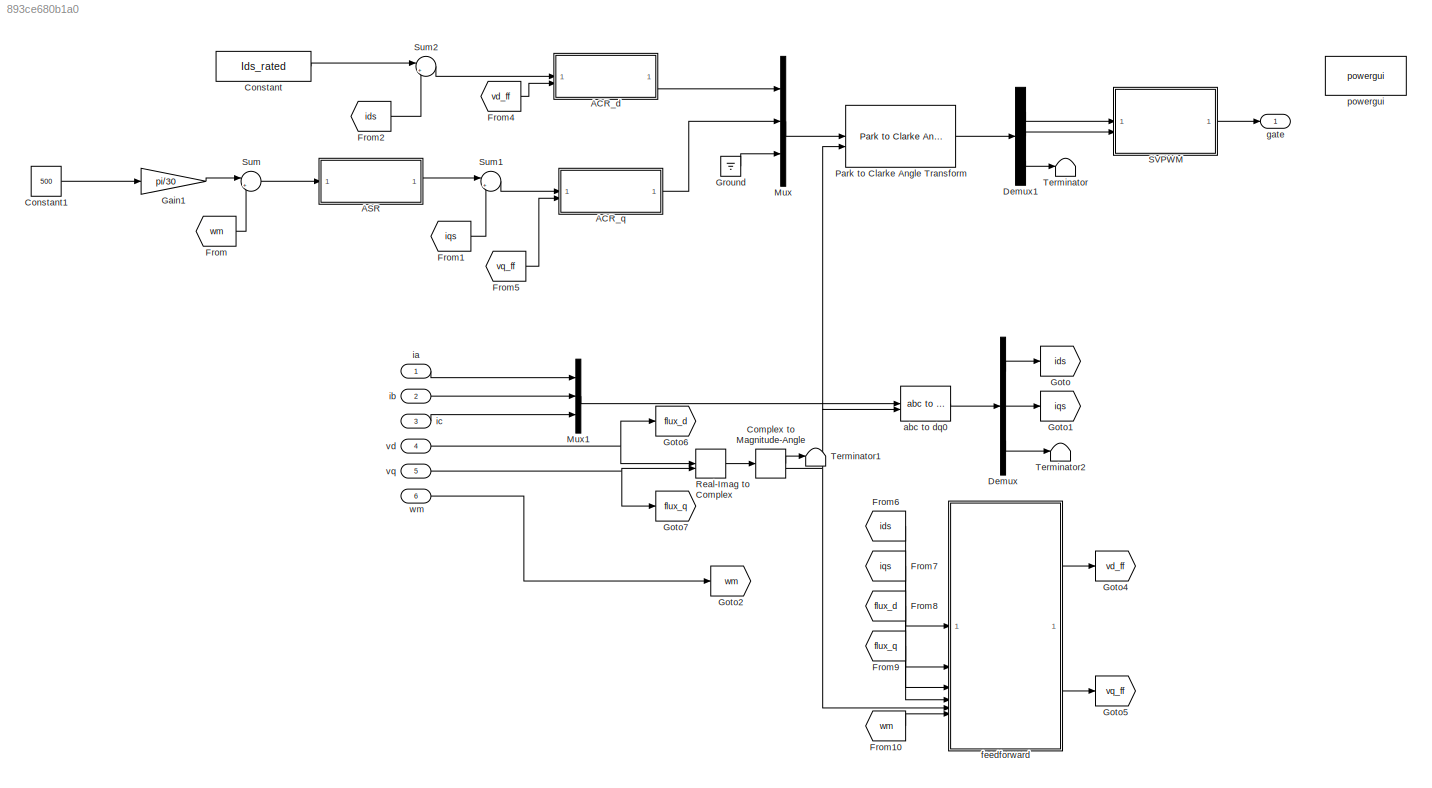
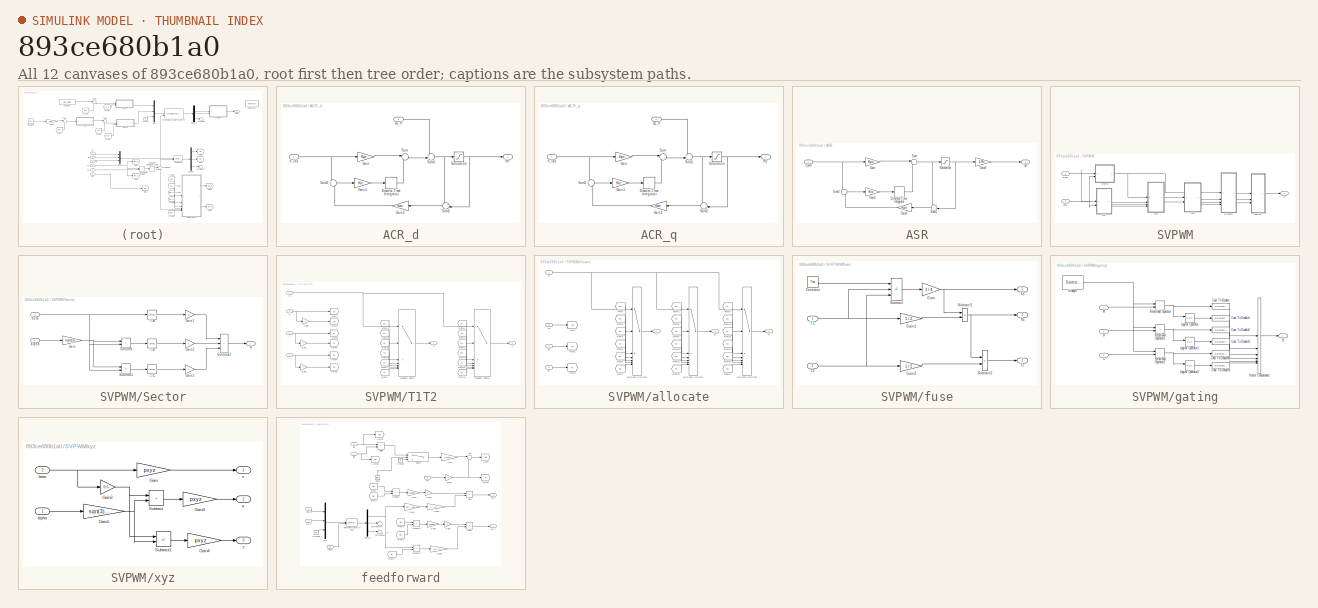
[diagram: thumbnail index - all 12 canvases of the model, root first then tree order]
MODEL slx_893ce680b1a0
KIND model
CONFIG AbsTol = auto
CONFIG EnableMultiTasking = off
CONFIG FixedStep = auto
CONFIG MaxStep = auto
CONFIG MinStep = auto
CONFIG RelTol = 1e-3
CONFIG SampleTimeConstraint = Unconstrained
CONFIG SolverName = FixedStepDiscrete
CONFIG StartTime = 0.0
CONFIG StopTime = 10.0
BLOCK [SubSystem] ACR_d
BLOCK [DiscreteIntegrator] ACR_d/Discrete-Time Integrator
  ICPrevOutput = DiscIntNeverNeededParam
  ICPrevScaledInput = DiscIntNeverNeededParam
  InitialConditionSetting = Auto
  SampleTime = -1
BLOCK [Gain] ACR_d/Gain
  Gain = Kpc
BLOCK [Gain] ACR_d/Gain1
  Gain = Kic
BLOCK [Gain] ACR_d/Gain2
  Gain = Kac
BLOCK [Saturate] ACR_d/Saturation
  LowerLimit = -V_max * 2
  UpperLimit = V_max * 2
BLOCK [Sum] ACR_d/Sum
  Inputs = |++
BLOCK [Sum] ACR_d/Sum1
  Inputs = ++|
BLOCK [Sum] ACR_d/Sum2
  Inputs = +-|
BLOCK [Sum] ACR_d/Sum3
  Inputs = +|-
BLOCK [Outport] ACR_d/Vd*
BLOCK [Inport] ACR_d/e_ids
BLOCK [Inport] ACR_d/vd_ff
  Port = 2
BLOCK [SubSystem] ACR_q
BLOCK [DiscreteIntegrator] ACR_q/Discrete-Time Integrator
  ICPrevOutput = DiscIntNeverNeededParam
  ICPrevScaledInput = DiscIntNeverNeededParam
  InitialConditionSetting = Auto
  SampleTime = -1
BLOCK [Gain] ACR_q/Gain
  Gain = Kpc
BLOCK [Gain] ACR_q/Gain1
  Gain = Kic
BLOCK [Gain] ACR_q/Gain2
  Gain = Kac
BLOCK [Saturate] ACR_q/Saturation
  LowerLimit = -V_max * 2
  UpperLimit = V_max * 2
BLOCK [Sum] ACR_q/Sum
  Inputs = |++
BLOCK [Sum] ACR_q/Sum1
  Inputs = ++|
BLOCK [Sum] ACR_q/Sum2
  Inputs = +-|
BLOCK [Sum] ACR_q/Sum3
  Inputs = +|-
BLOCK [Outport] ACR_q/Vq*
BLOCK [Inport] ACR_q/e_iqs
BLOCK [Inport] ACR_q/vq_ff
  Port = 2
BLOCK [SubSystem] ASR
BLOCK [DiscreteIntegrator] ASR/Discrete-Time Integrator
  ICPrevOutput = DiscIntNeverNeededParam
  ICPrevScaledInput = DiscIntNeverNeededParam
  InitialConditionSetting = Auto
  SampleTime = -1
BLOCK [Gain] ASR/Gain
  Gain = Kps
BLOCK [Gain] ASR/Gain1
  Gain = Kis
BLOCK [Gain] ASR/Gain2
  Gain = 1/Kt
BLOCK [Gain] ASR/Gain3
  Gain = Kas
  NameLocation = top
BLOCK [Saturate] ASR/Saturation
  LowerLimit = -Te_rated
  UpperLimit = Te_rated
BLOCK [Sum] ASR/Sum
  Inputs = |++
BLOCK [Sum] ASR/Sum1
  Inputs = +-|
  NameLocation = top
BLOCK [Sum] ASR/Sum2
  Inputs = +|-
BLOCK [Inport] ASR/e_wm
BLOCK [Outport] ASR/iqs*
BLOCK [ComplexToMagnitudeAngle] Complex to Magnitude-Angle
BLOCK [Constant] Constant
  Value = Ids_rated
BLOCK [Constant] Constant1
  Value = 500
BLOCK [Demux] Demux
  Outputs = 3
BLOCK [Demux] Demux1
  Outputs = 3
BLOCK [From] From
  GotoTag = wm
BLOCK [From] From1
  GotoTag = iqs
BLOCK [From] From10
  GotoTag = wm
BLOCK [From] From2
  GotoTag = ids
BLOCK [From] From4
  GotoTag = vd_ff
BLOCK [From] From5
  GotoTag = vq_ff
BLOCK [From] From6
  GotoTag = ids
BLOCK [From] From7
  GotoTag = iqs
BLOCK [From] From8
  GotoTag = flux_d
BLOCK [From] From9
  GotoTag = flux_q
BLOCK [Gain] Gain1
  Gain = pi/30
BLOCK [Goto] Goto
  GotoTag = ids
BLOCK [Goto] Goto1
  GotoTag = iqs
BLOCK [Goto] Goto2
  GotoTag = wm
BLOCK [Goto] Goto4
  GotoTag = vd_ff
BLOCK [Goto] Goto5
  GotoTag = vq_ff
BLOCK [Goto] Goto6
  GotoTag = flux_d
BLOCK [Goto] Goto7
  GotoTag = flux_q
BLOCK [Ground] Ground
BLOCK [Mux] Mux
  DisplayOption = bar
  Inputs = 3
BLOCK [Mux] Mux1
  DisplayOption = bar
  Inputs = 3
BLOCK [Reference] Park to Clarke Angle Transform  REF=eeTransforms/Park to Clarke
Angle Transform
  SourceBlock = eeTransforms/Park to Clarke\nAngle Transform
  SourceType = Park to Clarke Angle Transform
BLOCK [RealImagToComplex] Real-Imag to Complex
BLOCK [SubSystem] SVPWM
BLOCK [SubSystem] SVPWM/Sector
BLOCK [Gain] SVPWM/Sector/Gain
  Gain = sqrt(3)
BLOCK [Gain] SVPWM/Sector/Gain1
BLOCK [Gain] SVPWM/Sector/Gain2
  Gain = 2
BLOCK [Gain] SVPWM/Sector/Gain3
  Gain = 4
BLOCK [Outport] SVPWM/Sector/N
BLOCK [Sum] SVPWM/Sector/Subtract
  IconShape = rectangular
  Inputs = +-
BLOCK [Sum] SVPWM/Sector/Subtract1
  IconShape = rectangular
  Inputs = --
BLOCK [Sum] SVPWM/Sector/Subtract2
  IconShape = rectangular
  Inputs = +++
BLOCK [Inport] SVPWM/Sector/alpha
BLOCK [Inport] SVPWM/Sector/beta
  Port = 2
BLOCK [Reference] SVPWM/Sector/准则A  REF=simulink/Logic and Bit
Operations/Compare
To Constant
  SourceBlock = simulink/Logic and Bit\nOperations/Compare\nTo Constant
  SourceType = Compare To Constant
BLOCK [Reference] SVPWM/Sector/准则B  REF=simulink/Logic and Bit
Operations/Compare
To Constant
  SourceBlock = simulink/Logic and Bit\nOperations/Compare\nTo Constant
  SourceType = Compare To Constant
BLOCK [Reference] SVPWM/Sector/准则C  REF=simulink/Logic and Bit
Operations/Compare
To Constant
  SourceBlock = simulink/Logic and Bit\nOperations/Compare\nTo Constant
  SourceType = Compare To Constant
BLOCK [SubSystem] SVPWM/T1T2
BLOCK [From] SVPWM/T1T2/From
  GotoTag = pZ
BLOCK [From] SVPWM/T1T2/From1
  GotoTag = pY
BLOCK [From] SVPWM/T1T2/From10
  GotoTag = nY
BLOCK [From] SVPWM/T1T2/From11
  GotoTag = nZ
BLOCK [From] SVPWM/T1T2/From2
  GotoTag = nZ
BLOCK [From] SVPWM/T1T2/From3
  GotoTag = nX
BLOCK [From] SVPWM/T1T2/From4
  GotoTag = pX
BLOCK [From] SVPWM/T1T2/From5
  GotoTag = nY
BLOCK [From] SVPWM/T1T2/From6
  GotoTag = pY
BLOCK [From] SVPWM/T1T2/From7
  GotoTag = nX
BLOCK [From] SVPWM/T1T2/From8
  GotoTag = pX
BLOCK [From] SVPWM/T1T2/From9
  GotoTag = pZ
BLOCK [Gain] SVPWM/T1T2/Gain
  Gain = -1
BLOCK [Gain] SVPWM/T1T2/Gain1
  Gain = -1
BLOCK [Gain] SVPWM/T1T2/Gain2
  Gain = -1
BLOCK [Goto] SVPWM/T1T2/Goto
  GotoTag = pX
BLOCK [Goto] SVPWM/T1T2/Goto1
  GotoTag = nX
BLOCK [Goto] SVPWM/T1T2/Goto2
  GotoTag = pY
BLOCK [Goto] SVPWM/T1T2/Goto3
  GotoTag = nY
BLOCK [Goto] SVPWM/T1T2/Goto4
  GotoTag = pZ
BLOCK [Goto] SVPWM/T1T2/Goto5
  GotoTag = nZ
BLOCK [MultiPortSwitch] SVPWM/T1T2/Multiport Switch
  InputSameDT = off
  Inputs = 6
  SaturateOnIntegerOverflow = off
BLOCK [MultiPortSwitch] SVPWM/T1T2/Multiport Switch1
  InputSameDT = off
  Inputs = 6
  SaturateOnIntegerOverflow = off
BLOCK [Inport] SVPWM/T1T2/N
BLOCK [Outport] SVPWM/T1T2/T1
BLOCK [Outport] SVPWM/T1T2/T2
  Port = 2
BLOCK [Inport] SVPWM/T1T2/X
  Port = 2
BLOCK [Inport] SVPWM/T1T2/y
  Port = 3
BLOCK [Inport] SVPWM/T1T2/z
  Port = 4
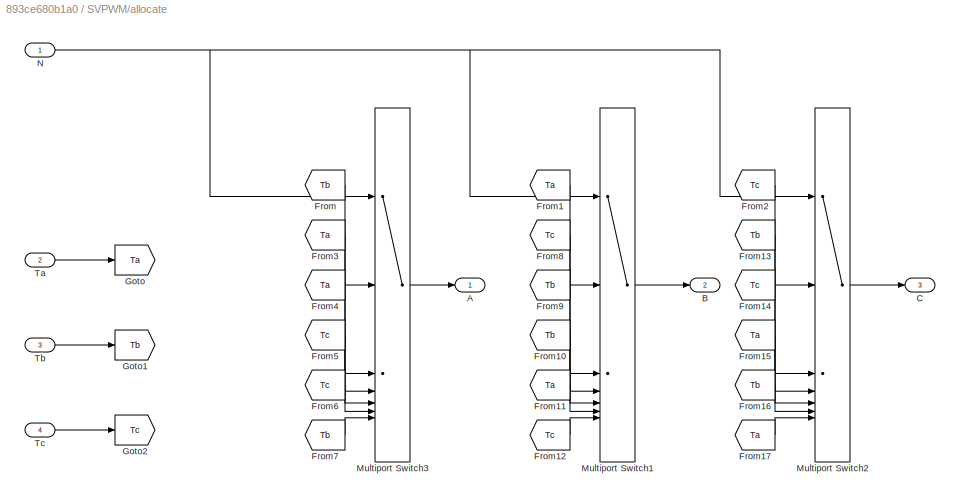
BLOCK [SubSystem] SVPWM/allocate
BLOCK [Outport] SVPWM/allocate/A
BLOCK [Outport] SVPWM/allocate/B
  Port = 2
BLOCK [Outport] SVPWM/allocate/C
  Port = 3
BLOCK [From] SVPWM/allocate/From
  GotoTag = Tb
BLOCK [From] SVPWM/allocate/From1
  GotoTag = Ta
BLOCK [From] SVPWM/allocate/From10
  GotoTag = Tb
BLOCK [From] SVPWM/allocate/From11
  GotoTag = Ta
BLOCK [From] SVPWM/allocate/From12
  GotoTag = Tc
BLOCK [From] SVPWM/allocate/From13
  GotoTag = Tb
BLOCK [From] SVPWM/allocate/From14
  GotoTag = Tc
BLOCK [From] SVPWM/allocate/From15
  GotoTag = Ta
BLOCK [From] SVPWM/allocate/From16
  GotoTag = Tb
BLOCK [From] SVPWM/allocate/From17
  GotoTag = Ta
BLOCK [From] SVPWM/allocate/From2
  GotoTag = Tc
BLOCK [From] SVPWM/allocate/From3
  GotoTag = Ta
BLOCK [From] SVPWM/allocate/From4
  GotoTag = Ta
BLOCK [From] SVPWM/allocate/From5
  GotoTag = Tc
BLOCK [From] SVPWM/allocate/From6
  GotoTag = Tc
BLOCK [From] SVPWM/allocate/From7
  GotoTag = Tb
BLOCK [From] SVPWM/allocate/From8
  GotoTag = Tc
BLOCK [From] SVPWM/allocate/From9
  GotoTag = Tb
BLOCK [Goto] SVPWM/allocate/Goto
  GotoTag = Ta
BLOCK [Goto] SVPWM/allocate/Goto1
  GotoTag = Tb
BLOCK [Goto] SVPWM/allocate/Goto2
  GotoTag = Tc
BLOCK [MultiPortSwitch] SVPWM/allocate/Multiport Switch1
  InputSameDT = off
  Inputs = 6
  SaturateOnIntegerOverflow = off
BLOCK [MultiPortSwitch] SVPWM/allocate/Multiport Switch2
  InputSameDT = off
  Inputs = 6
  SaturateOnIntegerOverflow = off
BLOCK [MultiPortSwitch] SVPWM/allocate/Multiport Switch3
  InputSameDT = off
  Inputs = 6
  SaturateOnIntegerOverflow = off
BLOCK [Inport] SVPWM/allocate/N
BLOCK [Inport] SVPWM/allocate/Ta
  Port = 2
BLOCK [Inport] SVPWM/allocate/Tb
  Port = 3
BLOCK [Inport] SVPWM/allocate/Tc
  Port = 4
BLOCK [Inport] SVPWM/alpha
BLOCK [Inport] SVPWM/beta
  Port = 2
BLOCK [SubSystem] SVPWM/fuse
BLOCK [Constant] SVPWM/fuse/Constant
  Value = Tsw
BLOCK [Gain] SVPWM/fuse/Gain
  Gain = 1 / 4
BLOCK [Gain] SVPWM/fuse/Gain1
  Gain = 1 / 2
BLOCK [Gain] SVPWM/fuse/Gain2
  Gain = 1 / 2
BLOCK [Sum] SVPWM/fuse/Subtract
  IconShape = rectangular
  Inputs = +--
BLOCK [Sum] SVPWM/fuse/Subtract1
  IconShape = rectangular
BLOCK [Sum] SVPWM/fuse/Subtract2
  IconShape = rectangular
BLOCK [Inport] SVPWM/fuse/T1
BLOCK [Inport] SVPWM/fuse/T2
  Port = 2
BLOCK [Outport] SVPWM/fuse/Ta
BLOCK [Outport] SVPWM/fuse/Tb
  Port = 2
BLOCK [Outport] SVPWM/fuse/Tc
  Port = 3
BLOCK [Outport] SVPWM/g
BLOCK [SubSystem] SVPWM/gating
BLOCK [Inport] SVPWM/gating/A
BLOCK [Inport] SVPWM/gating/B
  Port = 2
BLOCK [Inport] SVPWM/gating/C
  Port = 3
BLOCK [DataTypeConversion] SVPWM/gating/Cast To Double
  OutDataTypeStr = double
  RndMeth = Floor
  SaturateOnIntegerOverflow = off
BLOCK [DataTypeConversion] SVPWM/gating/Cast To Double1
  OutDataTypeStr = double
  RndMeth = Floor
  SaturateOnIntegerOverflow = off
BLOCK [DataTypeConversion] SVPWM/gating/Cast To Double2
  OutDataTypeStr = double
  RndMeth = Floor
  SaturateOnIntegerOverflow = off
BLOCK [DataTypeConversion] SVPWM/gating/Cast To Double3
  OutDataTypeStr = double
  RndMeth = Floor
  SaturateOnIntegerOverflow = off
BLOCK [DataTypeConversion] SVPWM/gating/Cast To Double4
  OutDataTypeStr = double
  RndMeth = Floor
  SaturateOnIntegerOverflow = off
BLOCK [DataTypeConversion] SVPWM/gating/Cast To Double5
  OutDataTypeStr = double
  RndMeth = Floor
  SaturateOnIntegerOverflow = off
BLOCK [Logic] SVPWM/gating/Logical Operator
  AllPortsSameDT = off
  Operator = NOT
  OutDataTypeStr = boolean
BLOCK [Logic] SVPWM/gating/Logical Operator1
  AllPortsSameDT = off
  Operator = NOT
  OutDataTypeStr = boolean
BLOCK [Logic] SVPWM/gating/Logical Operator2
  AllPortsSameDT = off
  Operator = NOT
  OutDataTypeStr = boolean
BLOCK [RelationalOperator] SVPWM/gating/Relational Operator
  InputSameDT = off
  Operator = >
  OutDataTypeStr = boolean
  RndMeth = Simplest
BLOCK [RelationalOperator] SVPWM/gating/Relational Operator1
  InputSameDT = off
  Operator = >
  OutDataTypeStr = boolean
  RndMeth = Simplest
BLOCK [RelationalOperator] SVPWM/gating/Relational Operator2
  InputSameDT = off
  Operator = >
  OutDataTypeStr = boolean
  RndMeth = Simplest
BLOCK [Concatenate] SVPWM/gating/Vector Concatenate
  NumInputs = 6
BLOCK [Outport] SVPWM/gating/g
BLOCK [Reference] SVPWM/gating/triangle  REF=discretizing/Discretized  (lib defined in mdl_5048aa1cd587)
Repeating Sequence
  SourceBlock = discretizing/Discretized\nRepeating Sequence
  SourceType = DiscretizedRepeatingTable
BLOCK [SubSystem] SVPWM/xyz
BLOCK [Gain] SVPWM/xyz/Gain
  Gain = pxyz
BLOCK [Gain] SVPWM/xyz/Gain1
  Gain = sqrt(3) / 2
BLOCK [Gain] SVPWM/xyz/Gain2
  Gain = 0.5
BLOCK [Gain] SVPWM/xyz/Gain3
  Gain = pxyz
BLOCK [Gain] SVPWM/xyz/Gain4
  Gain = pxyz
BLOCK [Sum] SVPWM/xyz/Subtract
  IconShape = rectangular
BLOCK [Sum] SVPWM/xyz/Subtract1
  IconShape = rectangular
  Inputs = +-
BLOCK [Inport] SVPWM/xyz/alpha
BLOCK [Inport] SVPWM/xyz/beta
  Port = 2
BLOCK [Outport] SVPWM/xyz/x
BLOCK [Outport] SVPWM/xyz/y
  Port = 2
BLOCK [Outport] SVPWM/xyz/z
  Port = 3
BLOCK [Sum] Sum
  Inputs = |+-
BLOCK [Sum] Sum1
  Inputs = |+-
BLOCK [Sum] Sum2
  Inputs = |+-
BLOCK [Terminator] Terminator
BLOCK [Terminator] Terminator1
BLOCK [Terminator] Terminator2
BLOCK [Reference] abc to dq0  REF=spsabctodq0Lib/abc to dq0
  LibrarySourceBlock = sps_lib/Control/abc to dq0
  SourceBlock = spsabctodq0Lib/abc to dq0
  SourceType = abc to dq0 Transformation
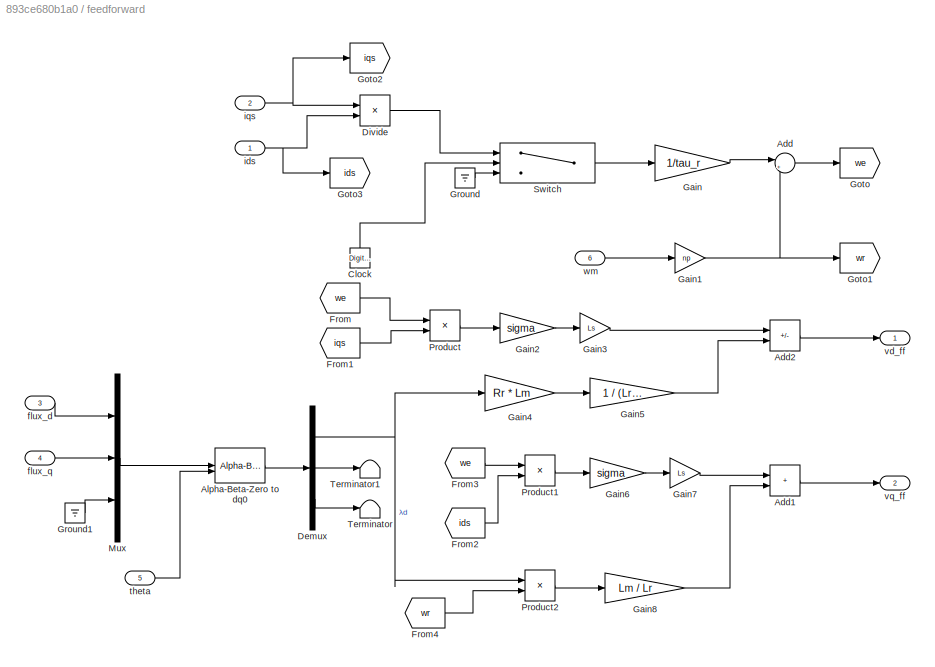
BLOCK [SubSystem] feedforward
BLOCK [Sum] feedforward/Add
  Inputs = |++
BLOCK [Sum] feedforward/Add1
  IconShape = rectangular
BLOCK [Sum] feedforward/Add2
  IconShape = rectangular
  Inputs = --
BLOCK [Reference] feedforward/Alpha-Beta-Zero to dq0  REF=spsAlphaBetaZerotodq0Lib/Alpha-Beta-Zero
to dq0
  LibrarySourceBlock = sps_lib/Control/Alpha-Beta-Zero\nto dq0
  SourceBlock = spsAlphaBetaZerotodq0Lib/Alpha-Beta-Zero\nto dq0
  SourceType = Alpha-Beta-Zero to dq0 Transformation
BLOCK [DigitalClock] feedforward/Clock
  NameLocation = right
  SampleTime = 1.0
BLOCK [Demux] feedforward/Demux
  Outputs = 3
BLOCK [Product] feedforward/Divide
  Inputs = */
BLOCK [From] feedforward/From
  GotoTag = we
BLOCK [From] feedforward/From1
  GotoTag = iqs
BLOCK [From] feedforward/From2
  GotoTag = ids
BLOCK [From] feedforward/From3
  GotoTag = we
BLOCK [From] feedforward/From4
  GotoTag = wr
BLOCK [Gain] feedforward/Gain
  Gain = 1/tau_r
BLOCK [Gain] feedforward/Gain1
  Gain = np
BLOCK [Gain] feedforward/Gain2
  Gain = sigma
BLOCK [Gain] feedforward/Gain3
  Gain = Ls
BLOCK [Gain] feedforward/Gain4
  Gain = Rr * Lm
BLOCK [Gain] feedforward/Gain5
  Gain = 1 / (Lr ^ 2)
BLOCK [Gain] feedforward/Gain6
  Gain = sigma
BLOCK [Gain] feedforward/Gain7
  Gain = Ls
BLOCK [Gain] feedforward/Gain8
  Gain = Lm / Lr
BLOCK [Goto] feedforward/Goto
  GotoTag = we
BLOCK [Goto] feedforward/Goto1
  GotoTag = wr
BLOCK [Goto] feedforward/Goto2
  GotoTag = iqs
BLOCK [Goto] feedforward/Goto3
  GotoTag = ids
BLOCK [Ground] feedforward/Ground
BLOCK [Ground] feedforward/Ground1
BLOCK [Mux] feedforward/Mux
  DisplayOption = bar
  Inputs = 3
BLOCK [Product] feedforward/Product
BLOCK [Product] feedforward/Product1
BLOCK [Product] feedforward/Product2
BLOCK [Switch] feedforward/Switch
  Criteria = u2 > Threshold
  InputSameDT = off
  SaturateOnIntegerOverflow = off
  Threshold = Tsw
BLOCK [Terminator] feedforward/Terminator
BLOCK [Terminator] feedforward/Terminator1
BLOCK [Inport] feedforward/flux_d
  Port = 3
BLOCK [Inport] feedforward/flux_q
  Port = 4
BLOCK [Inport] feedforward/ids
BLOCK [Inport] feedforward/iqs
  Port = 2
BLOCK [Inport] feedforward/theta
  Port = 5
BLOCK [Outport] feedforward/vd_ff
BLOCK [Outport] feedforward/vq_ff
  Port = 2
BLOCK [Inport] feedforward/wm
  Port = 6
BLOCK [Outport] gate
BLOCK [Inport] ia
  NameLocation = left
BLOCK [Inport] ib
  NameLocation = left
  Port = 2
BLOCK [Inport] ic
  NameLocation = left
  Port = 3
BLOCK [Reference] powergui  REF=spspowerguiLib/powergui
  LibrarySourceBlock = sps_lib/powergui
  Priority = 1
  SourceBlock = spspowerguiLib/powergui
  SourceType = PSB option menu block
BLOCK [Inport] vd
  NameLocation = left
  Port = 4
BLOCK [Inport] vq
  NameLocation = left
  Port = 5
BLOCK [Inport] wm
  NameLocation = left
  Port = 6
LINE ACR_d/Discrete-Time Integrator:1 -> ACR_d/Sum:2
LINE ACR_d/Gain1:1 -> ACR_d/Discrete-Time Integrator:1
LINE ACR_d/Gain2:1 -> ACR_d/Sum3:2
LINE ACR_d/Gain:1 -> ACR_d/Sum:1
NET ACR_d/Saturation:1 -> ACR_d/Sum2:2, ACR_d/Vd*:1
NET ACR_d/Sum1:1 -> ACR_d/Saturation:1, ACR_d/Sum2:1
LINE ACR_d/Sum2:1 -> ACR_d/Gain2:1
LINE ACR_d/Sum3:1 -> ACR_d/Gain1:1
LINE ACR_d/Sum:1 -> ACR_d/Sum1:2
NET ACR_d/e_ids:1 -> ACR_d/Gain:1, ACR_d/Sum3:1
LINE ACR_d/vd_ff:1 -> ACR_d/Sum1:1
LINE ACR_d:1 -> Mux:1
LINE ACR_q/Discrete-Time Integrator:1 -> ACR_q/Sum:2
LINE ACR_q/Gain1:1 -> ACR_q/Discrete-Time Integrator:1
LINE ACR_q/Gain2:1 -> ACR_q/Sum3:2
LINE ACR_q/Gain:1 -> ACR_q/Sum:1
NET ACR_q/Saturation:1 -> ACR_q/Sum2:2, ACR_q/Vq*:1
NET ACR_q/Sum1:1 -> ACR_q/Saturation:1, ACR_q/Sum2:1
LINE ACR_q/Sum2:1 -> ACR_q/Gain2:1
LINE ACR_q/Sum3:1 -> ACR_q/Gain1:1
LINE ACR_q/Sum:1 -> ACR_q/Sum1:2
NET ACR_q/e_iqs:1 -> ACR_q/Gain:1, ACR_q/Sum3:1
LINE ACR_q/vq_ff:1 -> ACR_q/Sum1:1
LINE ACR_q:1 -> Mux:2
LINE ASR/Discrete-Time Integrator:1 -> ASR/Sum:2
LINE ASR/Gain1:1 -> ASR/Discrete-Time Integrator:1
LINE ASR/Gain2:1 -> ASR/iqs*:1
LINE ASR/Gain3:1 -> ASR/Sum2:2
LINE ASR/Gain:1 -> ASR/Sum:1
NET ASR/Saturation:1 -> ASR/Gain2:1, ASR/Sum1:2
LINE ASR/Sum1:1 -> ASR/Gain3:1
LINE ASR/Sum2:1 -> ASR/Gain1:1
NET ASR/Sum:1 -> ASR/Saturation:1, ASR/Sum1:1
NET ASR/e_wm:1 -> ASR/Gain:1, ASR/Sum2:1
LINE ASR:1 -> Sum1:1
LINE Complex to Magnitude-Angle:1 -> Terminator1:1
NET Complex to Magnitude-Angle:2 -> Park to Clarke Angle Transform:2, abc to dq0:2, feedforward:5
LINE Constant1:1 -> Gain1:1
LINE Constant:1 -> Sum2:1
LINE Demux1:1 -> SVPWM:1
LINE Demux1:2 -> SVPWM:2
LINE Demux1:3 -> Terminator:1
LINE Demux:1 -> Goto:1
LINE Demux:2 -> Goto1:1
LINE Demux:3 -> Terminator2:1
LINE From10:1 -> feedforward:6
LINE From1:1 -> Sum1:2
LINE From2:1 -> Sum2:2
LINE From4:1 -> ACR_d:2
LINE From5:1 -> ACR_q:2
LINE From6:1 -> feedforward:1
LINE From7:1 -> feedforward:2
LINE From8:1 -> feedforward:3
LINE From9:1 -> feedforward:4
LINE From:1 -> Sum:2
LINE Gain1:1 -> Sum:1
LINE Ground:1 -> Mux:3
LINE Mux1:1 -> abc to dq0:1
LINE Mux:1 -> Park to Clarke Angle Transform:1
LINE Park to Clarke Angle Transform:1 -> Demux1:1
LINE Real-Imag to Complex:1 -> Complex to Magnitude-Angle:1
LINE SVPWM/Sector/Gain1:1 -> SVPWM/Sector/Subtract2:1
LINE SVPWM/Sector/Gain2:1 -> SVPWM/Sector/Subtract2:2
LINE SVPWM/Sector/Gain3:1 -> SVPWM/Sector/Subtract2:3
NET SVPWM/Sector/Gain:1 -> SVPWM/Sector/Subtract1:1, SVPWM/Sector/Subtract:1
LINE SVPWM/Sector/Subtract1:1 -> SVPWM/Sector/准则C:1
LINE SVPWM/Sector/Subtract2:1 -> SVPWM/Sector/N:1
LINE SVPWM/Sector/Subtract:1 -> SVPWM/Sector/准则B:1
LINE SVPWM/Sector/alpha:1 -> SVPWM/Sector/Gain:1
NET SVPWM/Sector/beta:1 -> SVPWM/Sector/Subtract1:2, SVPWM/Sector/Subtract:2, SVPWM/Sector/准则A:1
LINE SVPWM/Sector/准则A:1 -> SVPWM/Sector/Gain1:1
LINE SVPWM/Sector/准则B:1 -> SVPWM/Sector/Gain2:1
LINE SVPWM/Sector/准则C:1 -> SVPWM/Sector/Gain3:1
NET SVPWM/Sector:1 -> SVPWM/T1T2:1, SVPWM/allocate:1
LINE SVPWM/T1T2/From10:1 -> SVPWM/T1T2/Multiport Switch1:6
LINE SVPWM/T1T2/From11:1 -> SVPWM/T1T2/Multiport Switch1:7
LINE SVPWM/T1T2/From1:1 -> SVPWM/T1T2/Multiport Switch:3
LINE SVPWM/T1T2/From2:1 -> SVPWM/T1T2/Multiport Switch:4
LINE SVPWM/T1T2/From3:1 -> SVPWM/T1T2/Multiport Switch:5
LINE SVPWM/T1T2/From4:1 -> SVPWM/T1T2/Multiport Switch:6
LINE SVPWM/T1T2/From5:1 -> SVPWM/T1T2/Multiport Switch:7
LINE SVPWM/T1T2/From6:1 -> SVPWM/T1T2/Multiport Switch1:2
LINE SVPWM/T1T2/From7:1 -> SVPWM/T1T2/Multiport Switch1:3
LINE SVPWM/T1T2/From8:1 -> SVPWM/T1T2/Multiport Switch1:4
LINE SVPWM/T1T2/From9:1 -> SVPWM/T1T2/Multiport Switch1:5
LINE SVPWM/T1T2/From:1 -> SVPWM/T1T2/Multiport Switch:2
LINE SVPWM/T1T2/Gain1:1 -> SVPWM/T1T2/Goto3:1
LINE SVPWM/T1T2/Gain2:1 -> SVPWM/T1T2/Goto5:1
LINE SVPWM/T1T2/Gain:1 -> SVPWM/T1T2/Goto1:1
LINE SVPWM/T1T2/Multiport Switch1:1 -> SVPWM/T1T2/T2:1
LINE SVPWM/T1T2/Multiport Switch:1 -> SVPWM/T1T2/T1:1
NET SVPWM/T1T2/N:1 -> SVPWM/T1T2/Multiport Switch1:1, SVPWM/T1T2/Multiport Switch:1
NET SVPWM/T1T2/X:1 -> SVPWM/T1T2/Gain:1, SVPWM/T1T2/Goto:1
NET SVPWM/T1T2/y:1 -> SVPWM/T1T2/Gain1:1, SVPWM/T1T2/Goto2:1
NET SVPWM/T1T2/z:1 -> SVPWM/T1T2/Gain2:1, SVPWM/T1T2/Goto4:1
LINE SVPWM/T1T2:1 -> SVPWM/fuse:1
LINE SVPWM/T1T2:2 -> SVPWM/fuse:2
LINE SVPWM/allocate/From10:1 -> SVPWM/allocate/Multiport Switch1:5
LINE SVPWM/allocate/From11:1 -> SVPWM/allocate/Multiport Switch1:6
LINE SVPWM/allocate/From12:1 -> SVPWM/allocate/Multiport Switch1:7
LINE SVPWM/allocate/From13:1 -> SVPWM/allocate/Multiport Switch2:3
LINE SVPWM/allocate/From14:1 -> SVPWM/allocate/Multiport Switch2:4
LINE SVPWM/allocate/From15:1 -> SVPWM/allocate/Multiport Switch2:5
LINE SVPWM/allocate/From16:1 -> SVPWM/allocate/Multiport Switch2:6
LINE SVPWM/allocate/From17:1 -> SVPWM/allocate/Multiport Switch2:7
LINE SVPWM/allocate/From1:1 -> SVPWM/allocate/Multiport Switch1:2
LINE SVPWM/allocate/From2:1 -> SVPWM/allocate/Multiport Switch2:2
LINE SVPWM/allocate/From3:1 -> SVPWM/allocate/Multiport Switch3:3
LINE SVPWM/allocate/From4:1 -> SVPWM/allocate/Multiport Switch3:4
LINE SVPWM/allocate/From5:1 -> SVPWM/allocate/Multiport Switch3:5
LINE SVPWM/allocate/From6:1 -> SVPWM/allocate/Multiport Switch3:6
LINE SVPWM/allocate/From7:1 -> SVPWM/allocate/Multiport Switch3:7
LINE SVPWM/allocate/From8:1 -> SVPWM/allocate/Multiport Switch1:3
LINE SVPWM/allocate/From9:1 -> SVPWM/allocate/Multiport Switch1:4
LINE SVPWM/allocate/From:1 -> SVPWM/allocate/Multiport Switch3:2
LINE SVPWM/allocate/Multiport Switch1:1 -> SVPWM/allocate/B:1
LINE SVPWM/allocate/Multiport Switch2:1 -> SVPWM/allocate/C:1
LINE SVPWM/allocate/Multiport Switch3:1 -> SVPWM/allocate/A:1
NET SVPWM/allocate/N:1 -> SVPWM/allocate/Multiport Switch1:1, SVPWM/allocate/Multiport Switch2:1, SVPWM/allocate/Multiport Switch3:1
LINE SVPWM/allocate/Ta:1 -> SVPWM/allocate/Goto:1
LINE SVPWM/allocate/Tb:1 -> SVPWM/allocate/Goto1:1
LINE SVPWM/allocate/Tc:1 -> SVPWM/allocate/Goto2:1
LINE SVPWM/allocate:1 -> SVPWM/gating:1
LINE SVPWM/allocate:2 -> SVPWM/gating:2
LINE SVPWM/allocate:3 -> SVPWM/gating:3
NET SVPWM/alpha:1 -> SVPWM/Sector:1, SVPWM/xyz:1
NET SVPWM/beta:1 -> SVPWM/Sector:2, SVPWM/xyz:2
LINE SVPWM/fuse/Constant:1 -> SVPWM/fuse/Subtract:1
LINE SVPWM/fuse/Gain1:1 -> SVPWM/fuse/Subtract1:2
LINE SVPWM/fuse/Gain2:1 -> SVPWM/fuse/Subtract2:2
NET SVPWM/fuse/Gain:1 -> SVPWM/fuse/Subtract1:1, SVPWM/fuse/Ta:1
NET SVPWM/fuse/Subtract1:1 -> SVPWM/fuse/Subtract2:1, SVPWM/fuse/Tb:1
LINE SVPWM/fuse/Subtract2:1 -> SVPWM/fuse/Tc:1
LINE SVPWM/fuse/Subtract:1 -> SVPWM/fuse/Gain:1
NET SVPWM/fuse/T1:1 -> SVPWM/fuse/Gain1:1, SVPWM/fuse/Subtract:2
NET SVPWM/fuse/T2:1 -> SVPWM/fuse/Gain2:1, SVPWM/fuse/Subtract:3
LINE SVPWM/fuse:1 -> SVPWM/allocate:2
LINE SVPWM/fuse:2 -> SVPWM/allocate:3
LINE SVPWM/fuse:3 -> SVPWM/allocate:4
LINE SVPWM/gating/A:1 -> SVPWM/gating/Relational Operator:2
LINE SVPWM/gating/B:1 -> SVPWM/gating/Relational Operator1:2
LINE SVPWM/gating/C:1 -> SVPWM/gating/Relational Operator2:2
LINE SVPWM/gating/Cast To Double1:1 -> SVPWM/gating/Vector Concatenate:2
LINE SVPWM/gating/Cast To Double2:1 -> SVPWM/gating/Vector Concatenate:3
LINE SVPWM/gating/Cast To Double3:1 -> SVPWM/gating/Vector Concatenate:4
LINE SVPWM/gating/Cast To Double4:1 -> SVPWM/gating/Vector Concatenate:5
LINE SVPWM/gating/Cast To Double5:1 -> SVPWM/gating/Vector Concatenate:6
LINE SVPWM/gating/Cast To Double:1 -> SVPWM/gating/Vector Concatenate:1
LINE SVPWM/gating/Logical Operator1:1 -> SVPWM/gating/Cast To Double3:1
LINE SVPWM/gating/Logical Operator2:1 -> SVPWM/gating/Cast To Double5:1
LINE SVPWM/gating/Logical Operator:1 -> SVPWM/gating/Cast To Double1:1
NET SVPWM/gating/Relational Operator1:1 -> SVPWM/gating/Cast To Double2:1, SVPWM/gating/Logical Operator1:1
NET SVPWM/gating/Relational Operator2:1 -> SVPWM/gating/Cast To Double4:1, SVPWM/gating/Logical Operator2:1
NET SVPWM/gating/Relational Operator:1 -> SVPWM/gating/Cast To Double:1, SVPWM/gating/Logical Operator:1
LINE SVPWM/gating/Vector Concatenate:1 -> SVPWM/gating/g:1
NET SVPWM/gating/triangle:1 -> SVPWM/gating/Relational Operator1:1, SVPWM/gating/Relational Operator2:1, SVPWM/gating/Relational Operator:1
LINE SVPWM/gating:1 -> SVPWM/g:1
NET SVPWM/xyz/Gain1:1 -> SVPWM/xyz/Subtract1:2, SVPWM/xyz/Subtract:2
NET SVPWM/xyz/Gain2:1 -> SVPWM/xyz/Subtract1:1, SVPWM/xyz/Subtract:1
LINE SVPWM/xyz/Gain3:1 -> SVPWM/xyz/y:1
LINE SVPWM/xyz/Gain4:1 -> SVPWM/xyz/z:1
LINE SVPWM/xyz/Gain:1 -> SVPWM/xyz/x:1
LINE SVPWM/xyz/Subtract1:1 -> SVPWM/xyz/Gain4:1
LINE SVPWM/xyz/Subtract:1 -> SVPWM/xyz/Gain3:1
LINE SVPWM/xyz/alpha:1 -> SVPWM/xyz/Gain1:1
NET SVPWM/xyz/beta:1 -> SVPWM/xyz/Gain2:1, SVPWM/xyz/Gain:1
LINE SVPWM/xyz:1 -> SVPWM/T1T2:2
LINE SVPWM/xyz:2 -> SVPWM/T1T2:3
LINE SVPWM/xyz:3 -> SVPWM/T1T2:4
LINE SVPWM:1 -> gate:1
LINE Sum1:1 -> ACR_q:1
LINE Sum2:1 -> ACR_d:1
LINE Sum:1 -> ASR:1
LINE abc to dq0:1 -> Demux:1
LINE feedforward/Add1:1 -> feedforward/vq_ff:1
LINE feedforward/Add2:1 -> feedforward/vd_ff:1
LINE feedforward/Add:1 -> feedforward/Goto:1
LINE feedforward/Alpha-Beta-Zero to dq0:1 -> feedforward/Demux:1
LINE feedforward/Clock:1 -> feedforward/Switch:2
NET feedforward/Demux:1 -> feedforward/Gain4:1, feedforward/Product2:1
LINE feedforward/Demux:2 -> feedforward/Terminator1:1
LINE feedforward/Demux:3 -> feedforward/Terminator:1
LINE feedforward/Divide:1 -> feedforward/Switch:1
LINE feedforward/From1:1 -> feedforward/Product:2
LINE feedforward/From2:1 -> feedforward/Product1:2
LINE feedforward/From3:1 -> feedforward/Product1:1
LINE feedforward/From4:1 -> feedforward/Product2:2
LINE feedforward/From:1 -> feedforward/Product:1
NET feedforward/Gain1:1 -> feedforward/Add:2, feedforward/Goto1:1
LINE feedforward/Gain2:1 -> feedforward/Gain3:1
LINE feedforward/Gain3:1 -> feedforward/Add2:1
LINE feedforward/Gain4:1 -> feedforward/Gain5:1
LINE feedforward/Gain5:1 -> feedforward/Add2:2
LINE feedforward/Gain6:1 -> feedforward/Gain7:1
LINE feedforward/Gain7:1 -> feedforward/Add1:1
LINE feedforward/Gain8:1 -> feedforward/Add1:2
LINE feedforward/Gain:1 -> feedforward/Add:1
LINE feedforward/Ground1:1 -> feedforward/Mux:3
LINE feedforward/Ground:1 -> feedforward/Switch:3
LINE feedforward/Mux:1 -> feedforward/Alpha-Beta-Zero to dq0:1
LINE feedforward/Product1:1 -> feedforward/Gain6:1
LINE feedforward/Product2:1 -> feedforward/Gain8:1
LINE feedforward/Product:1 -> feedforward/Gain2:1
LINE feedforward/Switch:1 -> feedforward/Gain:1
LINE feedforward/flux_d:1 -> feedforward/Mux:1
LINE feedforward/flux_q:1 -> feedforward/Mux:2
NET feedforward/ids:1 -> feedforward/Divide:2, feedforward/Goto3:1
NET feedforward/iqs:1 -> feedforward/Divide:1, feedforward/Goto2:1
LINE feedforward/theta:1 -> feedforward/Alpha-Beta-Zero to dq0:2
LINE feedforward/wm:1 -> feedforward/Gain1:1
LINE feedforward:1 -> Goto4:1
LINE feedforward:2 -> Goto5:1
LINE ia:1 -> Mux1:1
LINE ib:1 -> Mux1:2
LINE ic:1 -> Mux1:3
NET vd:1 -> Goto6:1, Real-Imag to Complex:1
NET vq:1 -> Goto7:1, Real-Imag to Complex:2
LINE wm:1 -> Goto2:1
note: NET lines group one-source signal fan-out (src -> all destinations, sorted); 1:1 wires keep LINE
